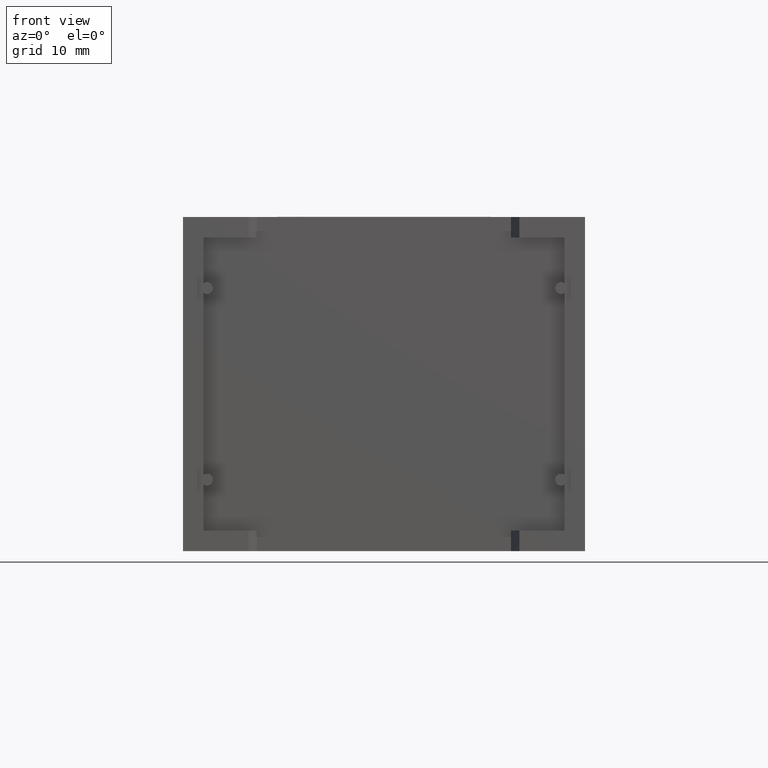
[diagram: clean part render]
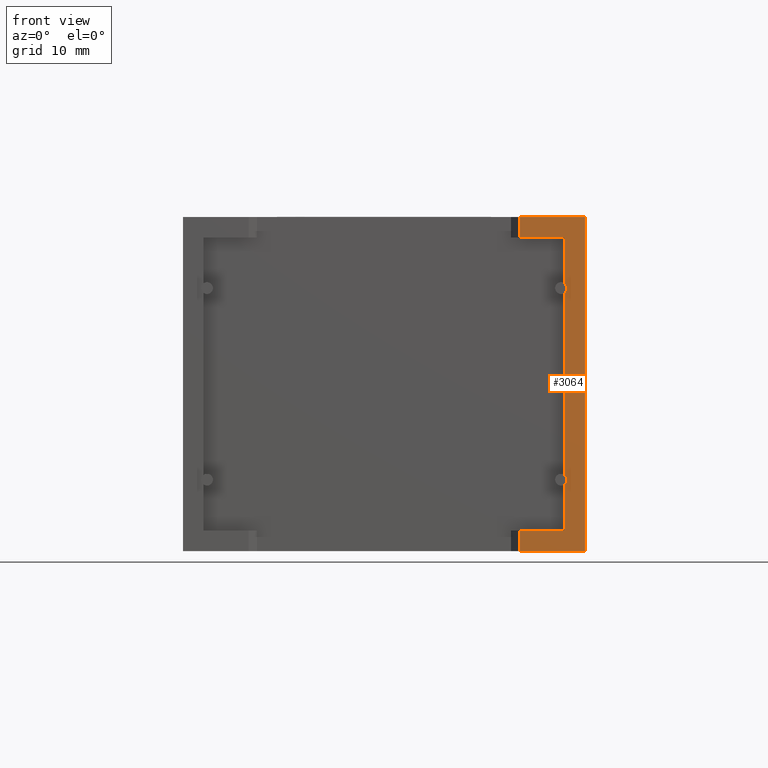
[diagram: same view with one face highlighted and labeled with its STEP entity id]
A machine part, front view. The second image highlights one B-rep face of the part: STEP entity #3064.
In plain terms, the highlighted planar face has unit normal (0, 1, 0).
Its self-contained STEP definition (entity closure, byte-faithful):
#9 = EDGE_CURVE ( 'NONE', #954, #2790, #562, .T. ) ;
#80 = EDGE_CURVE ( 'NONE', #1652, #496, #816, .T. ) ;
#87 = DIRECTION ( 'NONE',  ( 0.0000000000000000000, 1.000000000000000000, 0.0000000000000000000 ) ) ;
#111 = FACE_OUTER_BOUND ( 'NONE', #2506, .T. ) ;
#123 = DIRECTION ( 'NONE',  ( 0.0000000000000000000, 0.0000000000000000000, 1.000000000000000000 ) ) ;
#261 = CARTESIAN_POINT ( 'NONE',  ( 35.64999999999999900, 1.702259050814820900E-015, 2.176037999999999700 ) ) ;
#270 = CARTESIAN_POINT ( 'NONE',  ( 40.42396200000000300, 0.0000000000000000000, 27.34922318089192900 ) ) ;
#315 = EDGE_CURVE ( 'NONE', #991, #1281, #2012, .T. ) ;
#376 = DIRECTION ( 'NONE',  ( 0.0000000000000000000, 0.0000000000000000000, 1.000000000000000000 ) ) ;
#390 = VECTOR ( 'NONE', #598, 1000.000000000000000 ) ;
#408 = ORIENTED_EDGE ( 'NONE', *, *, #2179, .T. ) ;
#426 = CARTESIAN_POINT ( 'NONE',  ( 40.42396200000000300, 0.0000000000000000000, 8.050776819108072900 ) ) ;
#455 = ORIENTED_EDGE ( 'NONE', *, *, #3100, .F. ) ;
#457 = VERTEX_POINT ( 'NONE', #2442 ) ;
#487 = VECTOR ( 'NONE', #2105, 1000.000000000000000 ) ;
#496 = VERTEX_POINT ( 'NONE', #3319 ) ;
#530 = VERTEX_POINT ( 'NONE', #644 ) ;
#542 = CARTESIAN_POINT ( 'NONE',  ( 42.60000000000000100, 0.0000000000000000000, 35.39999999999999900 ) ) ;
#551 = CARTESIAN_POINT ( 'NONE',  ( 0.0000000000000000000, 0.0000000000000000000, 0.0000000000000000000 ) ) ;
#562 = LINE ( 'NONE', #2293, #2757 ) ;
#598 = DIRECTION ( 'NONE',  ( -0.0000000000000000000, -0.0000000000000000000, 1.000000000000000000 ) ) ;
#630 = VERTEX_POINT ( 'NONE', #426 ) ;
#636 = EDGE_CURVE ( 'NONE', #457, #804, #2405, .T. ) ;
#644 = CARTESIAN_POINT ( 'NONE',  ( 40.42396200000000300, 0.0000000000000000000, 28.35077681910807700 ) ) ;
#652 = LINE ( 'NONE', #542, #487 ) ;
#669 = CARTESIAN_POINT ( 'NONE',  ( 40.42396200000000300, 0.0000000000000000000, 2.176037999999999700 ) ) ;
#692 = CARTESIAN_POINT ( 'NONE',  ( 40.42396200000000300, 0.0000000000000000000, 33.22396200000000000 ) ) ;
#804 = VERTEX_POINT ( 'NONE', #1014 ) ;
#816 = LINE ( 'NONE', #3393, #3251 ) ;
#847 = ORIENTED_EDGE ( 'NONE', *, *, #315, .T. ) ;
#858 = DIRECTION ( 'NONE',  ( -0.0000000000000000000, -0.0000000000000000000, 1.000000000000000000 ) ) ;
#879 = CARTESIAN_POINT ( 'NONE',  ( 40.42396200000000300, 0.0000000000000000000, 2.176037999999999700 ) ) ;
#954 = VERTEX_POINT ( 'NONE', #1162 ) ;
#991 = VERTEX_POINT ( 'NONE', #2979 ) ;
#1014 = CARTESIAN_POINT ( 'NONE',  ( 35.64999999999999900, 1.702259050814820900E-015, 33.22396200000000000 ) ) ;
#1162 = CARTESIAN_POINT ( 'NONE',  ( 35.64999999999999900, 1.702259050814820900E-015, 35.39999999999999900 ) ) ;
#1185 = CARTESIAN_POINT ( 'NONE',  ( 40.05000000000000400, 0.0000000000000000000, 27.85000000000000500 ) ) ;
#1281 = VERTEX_POINT ( 'NONE', #3398 ) ;
#1505 = DIRECTION ( 'NONE',  ( -0.0000000000000000000, -1.000000000000000000, -0.0000000000000000000 ) ) ;
#1534 = ORIENTED_EDGE ( 'NONE', *, *, #9, .F. ) ;
#1546 = VECTOR ( 'NONE', #2653, 1000.000000000000000 ) ;
#1562 = CIRCLE ( 'NONE', #1764, 0.6250000000000005600 ) ;
#1569 = DIRECTION ( 'NONE',  ( 0.0000000000000000000, 1.000000000000000000, 0.0000000000000000000 ) ) ;
#1652 = VERTEX_POINT ( 'NONE', #879 ) ;
#1686 = ORIENTED_EDGE ( 'NONE', *, *, #80, .F. ) ;
#1764 = AXIS2_PLACEMENT_3D ( 'NONE', #2550, #1505, #2253 ) ;
#1766 = DIRECTION ( 'NONE',  ( -1.000000000000000000, 0.0000000000000000000, 0.0000000000000000000 ) ) ;
#1806 = EDGE_CURVE ( 'NONE', #630, #1922, #3403, .T. ) ;
#1909 = ORIENTED_EDGE ( 'NONE', *, *, #1965, .F. ) ;
#1910 = CARTESIAN_POINT ( 'NONE',  ( 2.176037999999999700, 0.0000000000000000000, 2.176037999999999700 ) ) ;
#1922 = VERTEX_POINT ( 'NONE', #270 ) ;
#1925 = CARTESIAN_POINT ( 'NONE',  ( 35.64999999999999900, 1.702259050814820900E-015, 0.0000000000000000000 ) ) ;
#1965 = EDGE_CURVE ( 'NONE', #804, #954, #2862, .T. ) ;
#2012 = LINE ( 'NONE', #551, #1546 ) ;
#2013 = CARTESIAN_POINT ( 'NONE',  ( 42.60000000000000100, 0.0000000000000000000, 35.39999999999999900 ) ) ;
#2073 = ORIENTED_EDGE ( 'NONE', *, *, #2314, .F. ) ;
#2086 = AXIS2_PLACEMENT_3D ( 'NONE', #2149, #1569, #2663 ) ;
#2092 = CARTESIAN_POINT ( 'NONE',  ( 40.42396200000000300, 0.0000000000000000000, 2.176037999999999700 ) ) ;
#2105 = DIRECTION ( 'NONE',  ( -0.0000000000000000000, -0.0000000000000000000, -1.000000000000000000 ) ) ;
#2111 = VECTOR ( 'NONE', #3137, 1000.000000000000000 ) ;
#2127 = EDGE_CURVE ( 'NONE', #3040, #1652, #3401, .T. ) ;
#2149 = CARTESIAN_POINT ( 'NONE',  ( 0.0000000000000000000, 0.0000000000000000000, 35.39999999999999900 ) ) ;
#2150 = EDGE_CURVE ( 'NONE', #991, #3040, #2458, .T. ) ;
#2179 = EDGE_CURVE ( 'NONE', #530, #1922, #2519, .T. ) ;
#2200 = ORIENTED_EDGE ( 'NONE', *, *, #2127, .F. ) ;
#2253 = DIRECTION ( 'NONE',  ( 0.0000000000000000000, 0.0000000000000000000, 1.000000000000000000 ) ) ;
#2293 = CARTESIAN_POINT ( 'NONE',  ( 0.0000000000000000000, 0.0000000000000000000, 35.39999999999999900 ) ) ;
#2314 = EDGE_CURVE ( 'NONE', #496, #630, #1562, .T. ) ;
#2405 = LINE ( 'NONE', #692, #3046 ) ;
#2412 = PLANE ( 'NONE',  #2086 ) ;
#2421 = CARTESIAN_POINT ( 'NONE',  ( 35.64999999999999900, 1.702259050814820900E-015, 0.0000000000000000000 ) ) ;
#2442 = CARTESIAN_POINT ( 'NONE',  ( 40.42396200000000300, 0.0000000000000000000, 33.22396200000000000 ) ) ;
#2458 = LINE ( 'NONE', #1925, #390 ) ;
#2486 = AXIS2_PLACEMENT_3D ( 'NONE', #1185, #87, #376 ) ;
#2506 = EDGE_LOOP ( 'NONE', ( #2073, #1686, #2200, #2968, #847, #455, #1534, #1909, #3256, #2649, #408, #2761 ) ) ;
#2519 = CIRCLE ( 'NONE', #2486, 0.6250000000000005600 ) ;
#2520 = VECTOR ( 'NONE', #123, 1000.000000000000000 ) ;
#2550 = CARTESIAN_POINT ( 'NONE',  ( 40.05000000000000400, 0.0000000000000000000, 7.549999999999998000 ) ) ;
#2649 = ORIENTED_EDGE ( 'NONE', *, *, #2714, .F. ) ;
#2653 = DIRECTION ( 'NONE',  ( 1.000000000000000000, 0.0000000000000000000, 0.0000000000000000000 ) ) ;
#2663 = DIRECTION ( 'NONE',  ( 0.0000000000000000000, -0.0000000000000000000, 1.000000000000000000 ) ) ;
#2702 = DIRECTION ( 'NONE',  ( 1.000000000000000000, 0.0000000000000000000, 0.0000000000000000000 ) ) ;
#2714 = EDGE_CURVE ( 'NONE', #530, #457, #3070, .T. ) ;
#2757 = VECTOR ( 'NONE', #3062, 1000.000000000000000 ) ;
#2761 = ORIENTED_EDGE ( 'NONE', *, *, #1806, .F. ) ;
#2790 = VERTEX_POINT ( 'NONE', #2013 ) ;
#2862 = LINE ( 'NONE', #2421, #3115 ) ;
#2968 = ORIENTED_EDGE ( 'NONE', *, *, #2150, .F. ) ;
#2979 = CARTESIAN_POINT ( 'NONE',  ( 35.64999999999999900, 1.702259050814820900E-015, 0.0000000000000000000 ) ) ;
#3010 = VECTOR ( 'NONE', #2702, 1000.000000000000000 ) ;
#3040 = VERTEX_POINT ( 'NONE', #261 ) ;
#3046 = VECTOR ( 'NONE', #1766, 1000.000000000000000 ) ;
#3062 = DIRECTION ( 'NONE',  ( 1.000000000000000000, 0.0000000000000000000, 0.0000000000000000000 ) ) ;
#3064 = ADVANCED_FACE ( 'NONE', ( #111 ), #2412, .F. ) ;
#3070 = LINE ( 'NONE', #669, #2520 ) ;
#3100 = EDGE_CURVE ( 'NONE', #2790, #1281, #652, .T. ) ;
#3115 = VECTOR ( 'NONE', #858, 1000.000000000000000 ) ;
#3137 = DIRECTION ( 'NONE',  ( 0.0000000000000000000, 0.0000000000000000000, 1.000000000000000000 ) ) ;
#3251 = VECTOR ( 'NONE', #3415, 1000.000000000000000 ) ;
#3256 = ORIENTED_EDGE ( 'NONE', *, *, #636, .F. ) ;
#3319 = CARTESIAN_POINT ( 'NONE',  ( 40.42396200000000300, 0.0000000000000000000, 7.049223180891923200 ) ) ;
#3393 = CARTESIAN_POINT ( 'NONE',  ( 40.42396200000000300, 0.0000000000000000000, 2.176037999999999700 ) ) ;
#3398 = CARTESIAN_POINT ( 'NONE',  ( 42.60000000000000100, 0.0000000000000000000, 0.0000000000000000000 ) ) ;
#3401 = LINE ( 'NONE', #1910, #3010 ) ;
#3403 = LINE ( 'NONE', #2092, #2111 ) ;
#3415 = DIRECTION ( 'NONE',  ( 0.0000000000000000000, 0.0000000000000000000, 1.000000000000000000 ) ) ;